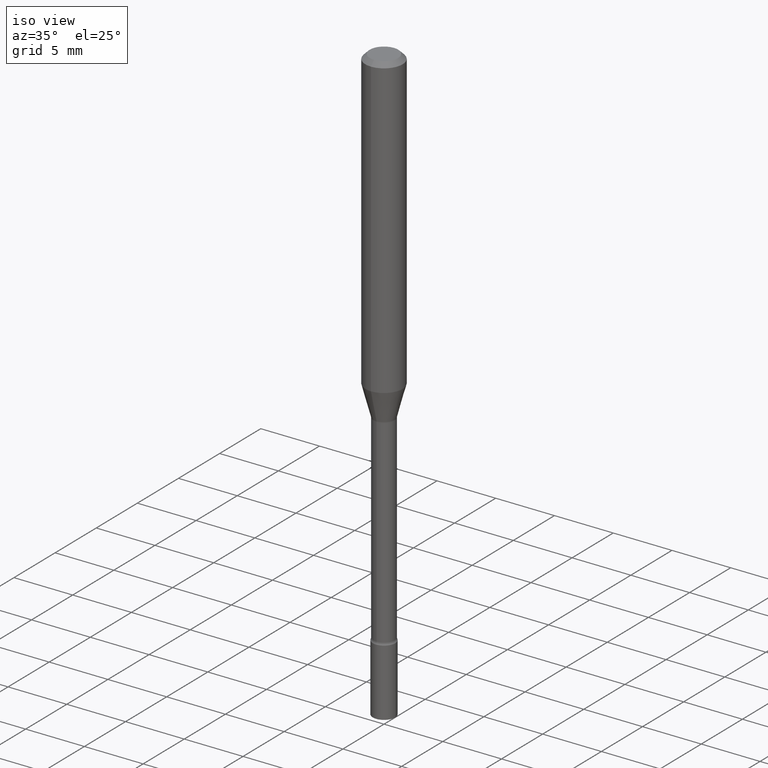
[diagram: clean part render]
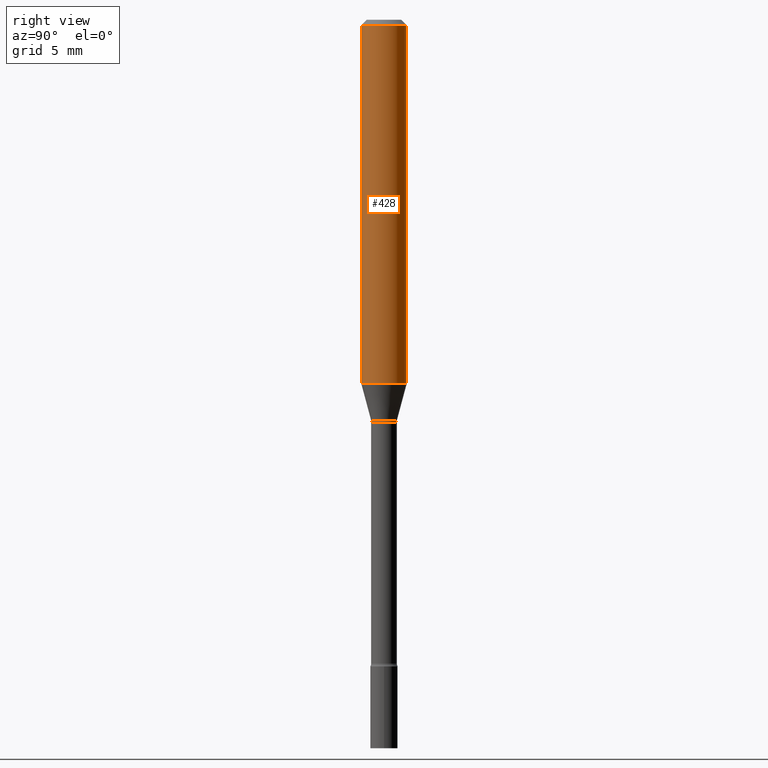
[diagram: tour spotlight — one face highlighted and labeled with its STEP entity id]
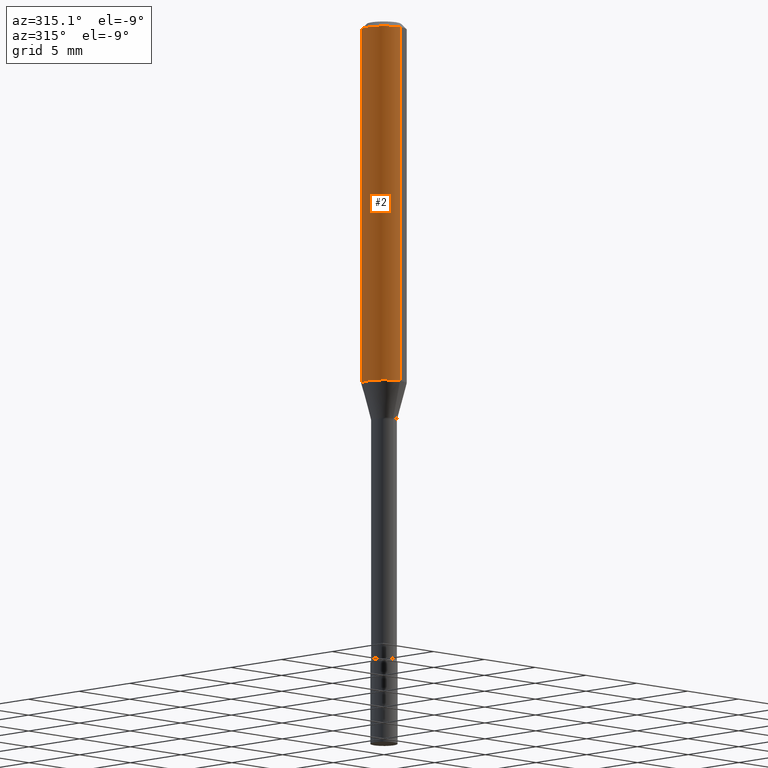
[diagram: tour spotlight — one face highlighted and labeled with its STEP entity id]
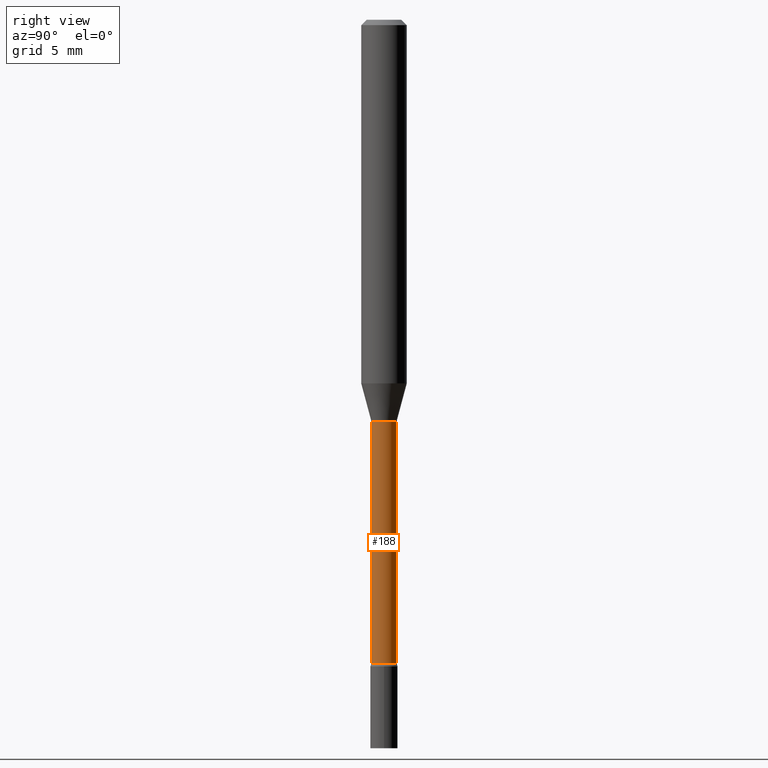
[diagram: tour spotlight — one face highlighted and labeled with its STEP entity id]
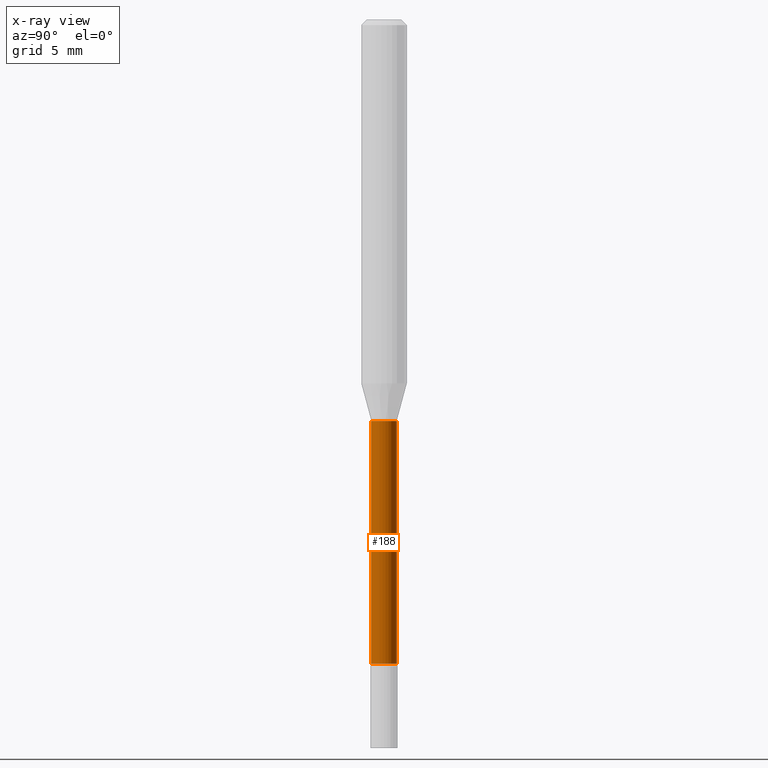
[diagram: x-ray of the same camera — body ghosted, this tour face saturated]
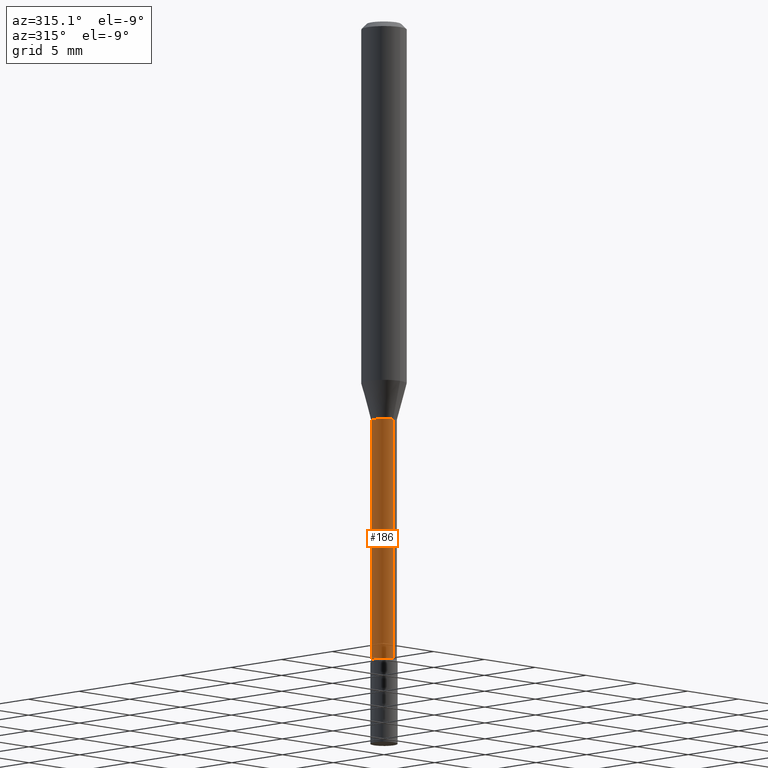
[diagram: tour spotlight — one face highlighted and labeled with its STEP entity id]
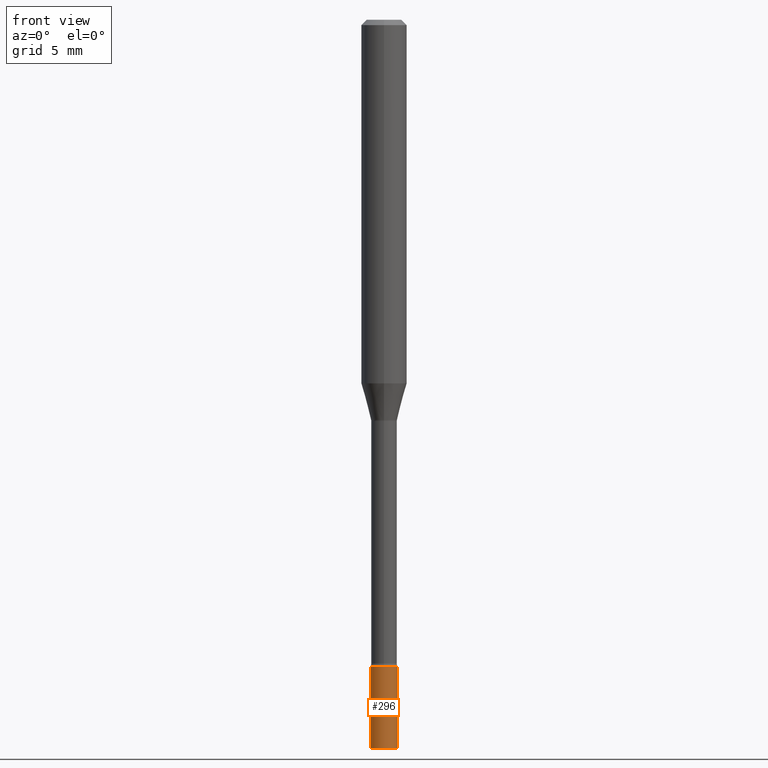
[diagram: tour spotlight — one face highlighted and labeled with its STEP entity id]
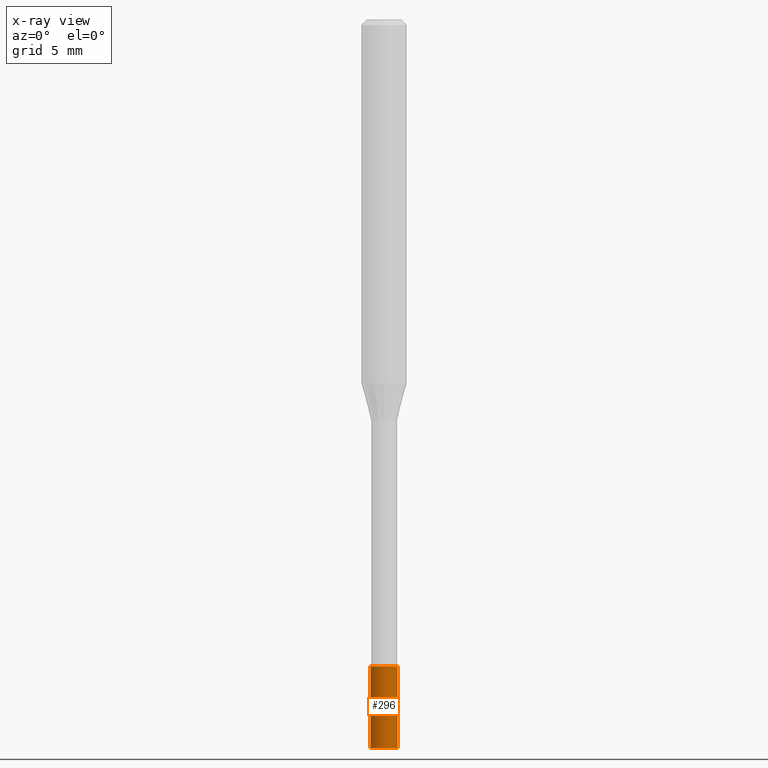
[diagram: x-ray of the same camera — body ghosted, this tour face saturated]
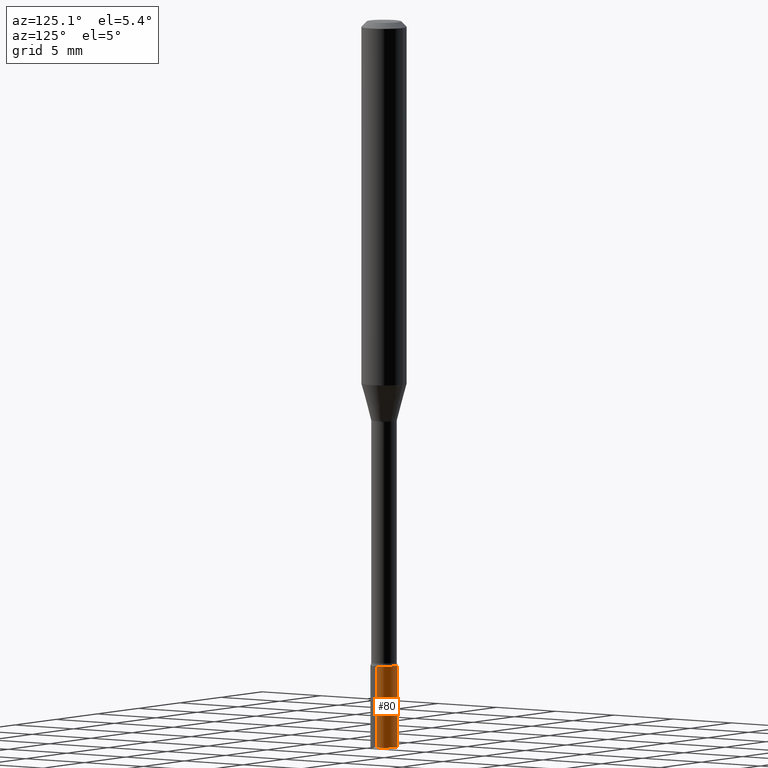
[diagram: tour spotlight — one face highlighted and labeled with its STEP entity id]
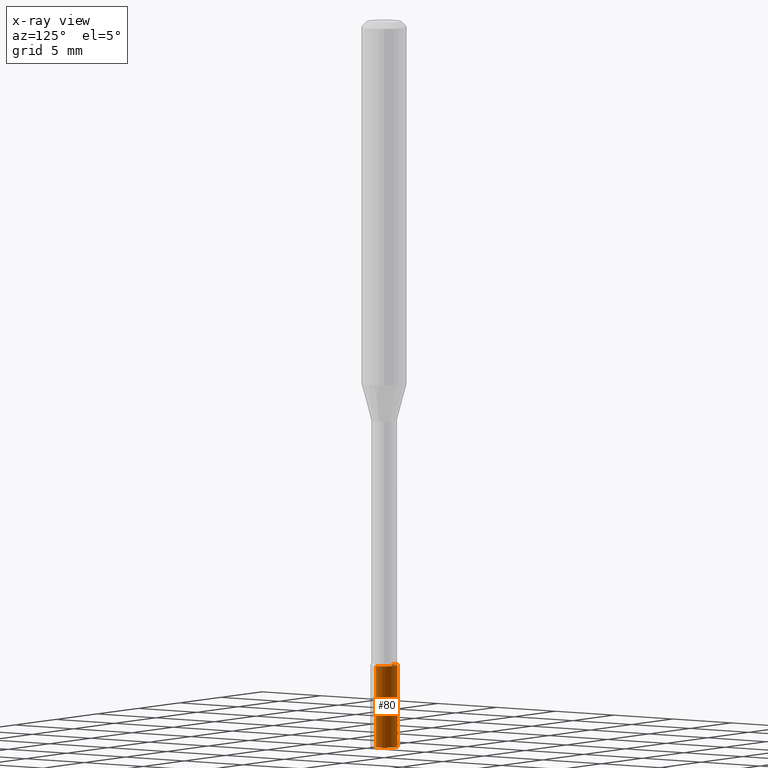
[diagram: x-ray of the same camera — body ghosted, this tour face saturated]
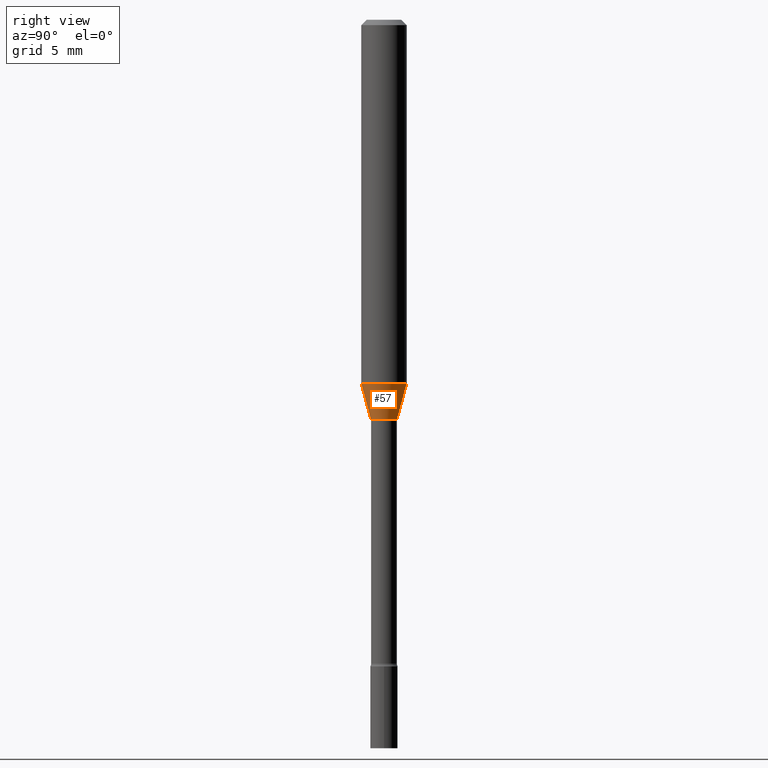
[diagram: tour spotlight — one face highlighted and labeled with its STEP entity id]
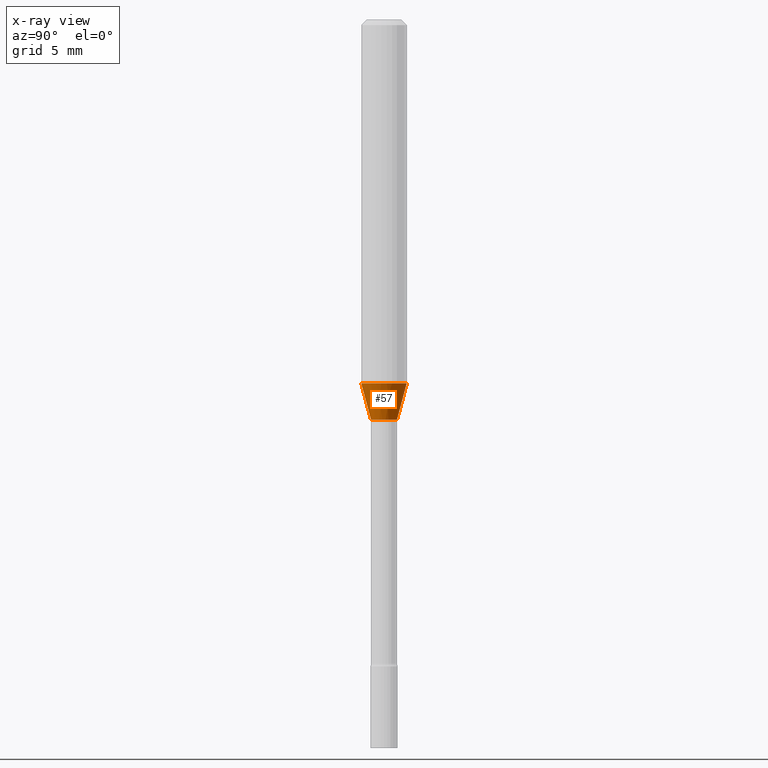
[diagram: x-ray of the same camera — body ghosted, this tour face saturated]
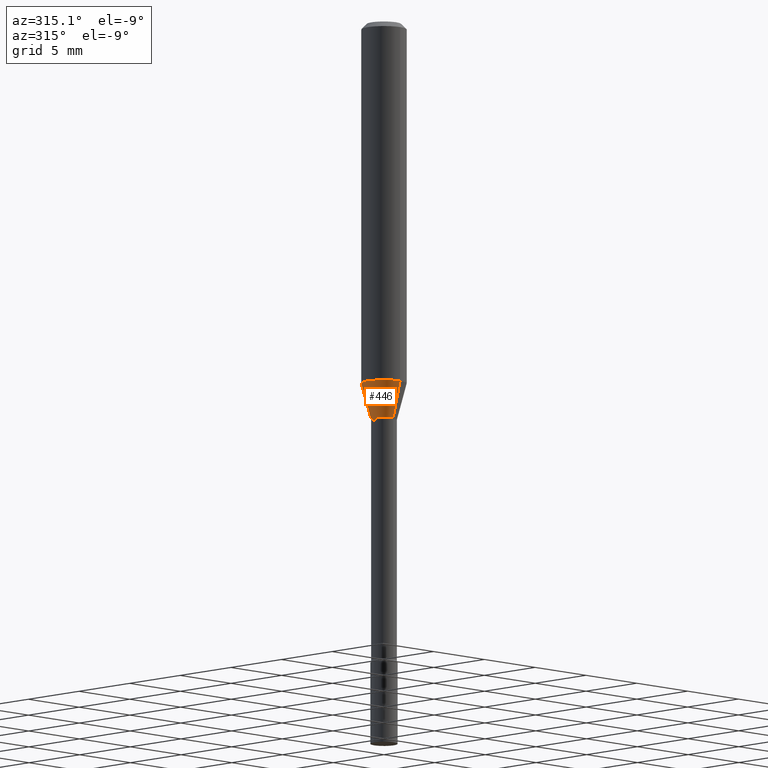
[diagram: tour spotlight — one face highlighted and labeled with its STEP entity id]
A machine part: a face-by-face anatomy tour. The part has 18 B-rep faces; the first image is the clean iso view, then the 8 largest visible faces are spotlighted one at a time (largest first), each with its STEP entity span.

Face 1 — right view, entity #428. In plain terms, the highlighted cylindrical surface (edge-blend (fillet) strip) has radius 1.5875 mm, axis along (-0, 0, 1).
Definition (entity closure, byte-faithful):
#21 = LINE ( 'NONE', #505, #238 ) ;
#55 = EDGE_CURVE ( 'NONE', #492, #335, #21, .T. ) ;
#66 = EDGE_CURVE ( 'NONE', #273, #151, #421, .T. ) ;
#69 = ORIENTED_EDGE ( 'NONE', *, *, #55, .T. ) ;
#73 = AXIS2_PLACEMENT_3D ( 'NONE', #387, #95, #502 ) ;
#76 = DIRECTION ( 'NONE',  ( -2.445481353659648780E-29, 3.491463370145485992E-15, 1.000000000000000000 ) ) ;
#78 = CYLINDRICAL_SURFACE ( 'NONE', #246, 0.06250000000000000000 ) ;
#90 = EDGE_CURVE ( 'NONE', #151, #335, #391, .T. ) ;
#95 = DIRECTION ( 'NONE',  ( -2.445481353659648780E-29, 3.491463370145485992E-15, 1.000000000000000000 ) ) ;
#117 = CARTESIAN_POINT ( 'NONE',  ( 4.440892098500871695E-16, 0.06249999999999995837, -0.01500000000000024751 ) ) ;
#121 = CARTESIAN_POINT ( 'NONE',  ( 0.000000000000000000, 0.000000000000000000, 0.000000000000000000 ) ) ;
#151 = VERTEX_POINT ( 'NONE', #423 ) ;
#157 = AXIS2_PLACEMENT_3D ( 'NONE', #227, #392, #317 ) ;
#169 = DIRECTION ( 'NONE',  ( -2.445481353659649060E-29, 3.491463370145485992E-15, 1.000000000000000000 ) ) ;
#184 = CIRCLE ( 'NONE', #157, 0.06250000000000000000 ) ;
#227 = CARTESIAN_POINT ( 'NONE',  ( 2.441327986018265977E-29, -3.485533522853485629E-15, -0.9983016154937482955 ) ) ;
#238 = VECTOR ( 'NONE', #350, 39.37007874015748143 ) ;
#242 = ORIENTED_EDGE ( 'NONE', *, *, #304, .T. ) ;
#246 = AXIS2_PLACEMENT_3D ( 'NONE', #121, #76, #408 ) ;
#273 = VERTEX_POINT ( 'NONE', #426 ) ;
#304 = EDGE_CURVE ( 'NONE', #273, #492, #184, .T. ) ;
#317 = DIRECTION ( 'NONE',  ( -6.982962677686265922E-15, -1.000000000000000000, 4.370956789862821150E-15 ) ) ;
#335 = VERTEX_POINT ( 'NONE', #117 ) ;
#350 = DIRECTION ( 'NONE',  ( -2.445481353659649060E-29, 3.491463370145485992E-15, 1.000000000000000000 ) ) ;
#353 = VECTOR ( 'NONE', #169, 39.37007874015748143 ) ;
#373 = ORIENTED_EDGE ( 'NONE', *, *, #90, .F. ) ;
#375 = EDGE_LOOP ( 'NONE', ( #242, #69, #373, #431 ) ) ;
#386 = CARTESIAN_POINT ( 'NONE',  ( -4.364351673553916201E-16, -0.06250000000000000000, 2.182164606340928745E-16 ) ) ;
#387 = CARTESIAN_POINT ( 'NONE',  ( 3.668222030489480229E-31, -5.237195055218239563E-17, -0.01500000000000003067 ) ) ;
#391 = CIRCLE ( 'NONE', #73, 0.06250000000000000000 ) ;
#392 = DIRECTION ( 'NONE',  ( -2.445481353659648780E-29, 3.491463370145485992E-15, 1.000000000000000000 ) ) ;
#408 = DIRECTION ( 'NONE',  ( -6.982962677686265922E-15, -1.000000000000000000, 3.491463370145485992E-15 ) ) ;
#421 = LINE ( 'NONE', #386, #353 ) ;
#423 = CARTESIAN_POINT ( 'NONE',  ( -4.364351673553912750E-16, -0.06250000000000005551, -0.01499999999999981209 ) ) ;
#426 = CARTESIAN_POINT ( 'NONE',  ( -4.364351673553671654E-16, -0.06250000000000346945, -0.9983016154937480735 ) ) ;
#428 = ADVANCED_FACE ( 'NONE', ( #442 ), #78, .T. ) ;
#431 = ORIENTED_EDGE ( 'NONE', *, *, #66, .F. ) ;
#442 = FACE_OUTER_BOUND ( 'NONE', #375, .T. ) ;
#445 = CARTESIAN_POINT ( 'NONE',  ( 4.440892098500869722E-16, 0.06249999999999652361, -0.9983016154937485176 ) ) ;
#492 = VERTEX_POINT ( 'NONE', #445 ) ;
#502 = DIRECTION ( 'NONE',  ( -6.982962677686265922E-15, -1.000000000000000000, 3.483106191921935554E-15 ) ) ;
#505 = CARTESIAN_POINT ( 'NONE',  ( 4.440892098500625669E-16, 0.06250000000000000000, -2.182164606340928745E-16 ) ) ;

Face 2 — auxiliary view, entity #2. In plain terms, the highlighted cylindrical surface (edge-blend (fillet) strip) has radius 1.5875 mm, axis along (-0, 0, 1).
Definition (entity closure, byte-faithful):
#2 = ADVANCED_FACE ( 'NONE', ( #122 ), #491, .T. ) ;
#6 = AXIS2_PLACEMENT_3D ( 'NONE', #339, #499, #294 ) ;
#21 = LINE ( 'NONE', #505, #238 ) ;
#55 = EDGE_CURVE ( 'NONE', #492, #335, #21, .T. ) ;
#66 = EDGE_CURVE ( 'NONE', #273, #151, #421, .T. ) ;
#72 = ORIENTED_EDGE ( 'NONE', *, *, #66, .T. ) ;
#85 = ORIENTED_EDGE ( 'NONE', *, *, #55, .F. ) ;
#113 = DIRECTION ( 'NONE',  ( -6.982962677686265922E-15, -1.000000000000000000, 3.491463370145485992E-15 ) ) ;
#116 = CARTESIAN_POINT ( 'NONE',  ( 0.000000000000000000, 0.000000000000000000, 0.000000000000000000 ) ) ;
#117 = CARTESIAN_POINT ( 'NONE',  ( 4.440892098500871695E-16, 0.06249999999999995837, -0.01500000000000024751 ) ) ;
#120 = ORIENTED_EDGE ( 'NONE', *, *, #382, .F. ) ;
#122 = FACE_OUTER_BOUND ( 'NONE', #401, .T. ) ;
#126 = AXIS2_PLACEMENT_3D ( 'NONE', #116, #412, #113 ) ;
#151 = VERTEX_POINT ( 'NONE', #423 ) ;
#169 = DIRECTION ( 'NONE',  ( -2.445481353659649060E-29, 3.491463370145485992E-15, 1.000000000000000000 ) ) ;
#197 = CARTESIAN_POINT ( 'NONE',  ( 3.668222030489480229E-31, -5.237195055218239563E-17, -0.01500000000000003067 ) ) ;
#206 = DIRECTION ( 'NONE',  ( -2.445481353659648780E-29, 3.491463370145485992E-15, 1.000000000000000000 ) ) ;
#238 = VECTOR ( 'NONE', #350, 39.37007874015748143 ) ;
#273 = VERTEX_POINT ( 'NONE', #426 ) ;
#283 = CIRCLE ( 'NONE', #6, 0.06250000000000000000 ) ;
#294 = DIRECTION ( 'NONE',  ( -6.982962677686265922E-15, -1.000000000000000000, 4.370956789862821150E-15 ) ) ;
#335 = VERTEX_POINT ( 'NONE', #117 ) ;
#339 = CARTESIAN_POINT ( 'NONE',  ( 2.441327986018265977E-29, -3.485533522853485629E-15, -0.9983016154937482955 ) ) ;
#350 = DIRECTION ( 'NONE',  ( -2.445481353659649060E-29, 3.491463370145485992E-15, 1.000000000000000000 ) ) ;
#353 = VECTOR ( 'NONE', #169, 39.37007874015748143 ) ;
#374 = DIRECTION ( 'NONE',  ( -6.982962677686265922E-15, -1.000000000000000000, 3.483106191921935554E-15 ) ) ;
#382 = EDGE_CURVE ( 'NONE', #335, #151, #420, .T. ) ;
#386 = CARTESIAN_POINT ( 'NONE',  ( -4.364351673553916201E-16, -0.06250000000000000000, 2.182164606340928745E-16 ) ) ;
#401 = EDGE_LOOP ( 'NONE', ( #85, #512, #72, #120 ) ) ;
#412 = DIRECTION ( 'NONE',  ( -2.445481353659648780E-29, 3.491463370145485992E-15, 1.000000000000000000 ) ) ;
#420 = CIRCLE ( 'NONE', #468, 0.06250000000000000000 ) ;
#421 = LINE ( 'NONE', #386, #353 ) ;
#423 = CARTESIAN_POINT ( 'NONE',  ( -4.364351673553912750E-16, -0.06250000000000005551, -0.01499999999999981209 ) ) ;
#426 = CARTESIAN_POINT ( 'NONE',  ( -4.364351673553671654E-16, -0.06250000000000346945, -0.9983016154937480735 ) ) ;
#445 = CARTESIAN_POINT ( 'NONE',  ( 4.440892098500869722E-16, 0.06249999999999652361, -0.9983016154937485176 ) ) ;
#447 = EDGE_CURVE ( 'NONE', #492, #273, #283, .T. ) ;
#468 = AXIS2_PLACEMENT_3D ( 'NONE', #197, #206, #374 ) ;
#491 = CYLINDRICAL_SURFACE ( 'NONE', #126, 0.06250000000000000000 ) ;
#492 = VERTEX_POINT ( 'NONE', #445 ) ;
#499 = DIRECTION ( 'NONE',  ( -2.445481353659648780E-29, 3.491463370145485992E-15, 1.000000000000000000 ) ) ;
#505 = CARTESIAN_POINT ( 'NONE',  ( 4.440892098500625669E-16, 0.06250000000000000000, -2.182164606340928745E-16 ) ) ;
#512 = ORIENTED_EDGE ( 'NONE', *, *, #447, .T. ) ;

Face 3 — right view, entity #188. An x-ray twin of the same camera follows (body ghosted, this face saturated) — the face is partly hidden behind the body. In plain terms, the highlighted cylindrical surface (edge-blend (fillet) strip) has radius 0.8954 mm, axis along (-0, 0, 1).
Definition (entity closure, byte-faithful):
#5 = VERTEX_POINT ( 'NONE', #46 ) ;
#10 = EDGE_LOOP ( 'NONE', ( #270, #281, #43, #511 ) ) ;
#14 = CARTESIAN_POINT ( 'NONE',  ( 2.504663143554787774E-16, 0.03524999999999615247, -1.101974787463811056 ) ) ;
#43 = ORIENTED_EDGE ( 'NONE', *, *, #272, .F. ) ;
#45 = AXIS2_PLACEMENT_3D ( 'NONE', #218, #395, #397 ) ;
#46 = CARTESIAN_POINT ( 'NONE',  ( -2.461494343884138594E-16, -0.03525000000000384076, -1.101974787463810834 ) ) ;
#59 = CYLINDRICAL_SURFACE ( 'NONE', #45, 0.03525000000000003825 ) ;
#62 = CARTESIAN_POINT ( 'NONE',  ( -2.461494343883982794E-16, -0.03525000000000625550, -1.767098259685360606 ) ) ;
#68 = LINE ( 'NONE', #365, #497 ) ;
#77 = VERTEX_POINT ( 'NONE', #14 ) ;
#86 = DIRECTION ( 'NONE',  ( -2.445481353659648780E-29, 3.491463370145485992E-15, 1.000000000000000000 ) ) ;
#107 = CARTESIAN_POINT ( 'NONE',  ( 2.694858794945804127E-29, -3.847504605253753145E-15, -1.101974787463810834 ) ) ;
#128 = DIRECTION ( 'NONE',  ( -6.982962677686266711E-15, -1.000000000000000000, 0.000000000000000000 ) ) ;
#146 = CIRCLE ( 'NONE', #173, 0.03525000000000008682 ) ;
#154 = CIRCLE ( 'NONE', #378, 0.03524999999999999661 ) ;
#158 = VERTEX_POINT ( 'NONE', #62 ) ;
#165 = CARTESIAN_POINT ( 'NONE',  ( 2.584599201327800595E-16, 0.03524999999999392508, -1.767098259685360606 ) ) ;
#171 = EDGE_CURVE ( 'NONE', #158, #403, #146, .T. ) ;
#173 = AXIS2_PLACEMENT_3D ( 'NONE', #379, #86, #128 ) ;
#181 = DIRECTION ( 'NONE',  ( -2.445481353659648780E-29, 3.491463370145485992E-15, 1.000000000000000000 ) ) ;
#188 = ADVANCED_FACE ( 'NONE', ( #418 ), #59, .T. ) ;
#218 = CARTESIAN_POINT ( 'NONE',  ( 0.000000000000000000, 0.000000000000000000, 0.000000000000000000 ) ) ;
#244 = LINE ( 'NONE', #328, #276 ) ;
#257 = EDGE_CURVE ( 'NONE', #403, #77, #68, .T. ) ;
#270 = ORIENTED_EDGE ( 'NONE', *, *, #171, .T. ) ;
#272 = EDGE_CURVE ( 'NONE', #5, #77, #154, .T. ) ;
#276 = VECTOR ( 'NONE', #451, 39.37007874015748143 ) ;
#281 = ORIENTED_EDGE ( 'NONE', *, *, #257, .T. ) ;
#311 = DIRECTION ( 'NONE',  ( -2.445481353659649060E-29, 3.491463370145485992E-15, 1.000000000000000000 ) ) ;
#328 = CARTESIAN_POINT ( 'NONE',  ( -2.461494343884411737E-16, -0.03525000000000003825, 1.230740837976285376E-16 ) ) ;
#365 = CARTESIAN_POINT ( 'NONE',  ( 2.504663143554355873E-16, 0.03525000000000003825, -1.230740837976285376E-16 ) ) ;
#378 = AXIS2_PLACEMENT_3D ( 'NONE', #107, #181, #519 ) ;
#379 = CARTESIAN_POINT ( 'NONE',  ( 4.321405844144966005E-29, -6.169758845139272313E-15, -1.767098259685360606 ) ) ;
#395 = DIRECTION ( 'NONE',  ( -2.445481353659648780E-29, 3.491463370145485992E-15, 1.000000000000000000 ) ) ;
#397 = DIRECTION ( 'NONE',  ( -6.982962677686266711E-15, -1.000000000000000000, 3.491463370145486781E-15 ) ) ;
#403 = VERTEX_POINT ( 'NONE', #165 ) ;
#418 = FACE_OUTER_BOUND ( 'NONE', #10, .T. ) ;
#432 = EDGE_CURVE ( 'NONE', #158, #5, #244, .T. ) ;
#451 = DIRECTION ( 'NONE',  ( -2.445481353659649060E-29, 3.491463370145485992E-15, 1.000000000000000000 ) ) ;
#497 = VECTOR ( 'NONE', #311, 39.37007874015748143 ) ;
#511 = ORIENTED_EDGE ( 'NONE', *, *, #432, .F. ) ;
#519 = DIRECTION ( 'NONE',  ( -6.982962677686265133E-15, -1.000000000000000000, 3.874961693140799059E-15 ) ) ;

Face 4 — auxiliary view, entity #186. In plain terms, the highlighted cylindrical surface (edge-blend (fillet) strip) has radius 0.8954 mm, axis along (-0, 0, 1).
Definition (entity closure, byte-faithful):
#5 = VERTEX_POINT ( 'NONE', #46 ) ;
#14 = CARTESIAN_POINT ( 'NONE',  ( 2.504663143554787774E-16, 0.03524999999999615247, -1.101974787463811056 ) ) ;
#15 = CYLINDRICAL_SURFACE ( 'NONE', #182, 0.03525000000000003825 ) ;
#37 = DIRECTION ( 'NONE',  ( -6.982962677686266711E-15, -1.000000000000000000, 0.000000000000000000 ) ) ;
#40 = ORIENTED_EDGE ( 'NONE', *, *, #222, .F. ) ;
#46 = CARTESIAN_POINT ( 'NONE',  ( -2.461494343884138594E-16, -0.03525000000000384076, -1.101974787463810834 ) ) ;
#62 = CARTESIAN_POINT ( 'NONE',  ( -2.461494343883982794E-16, -0.03525000000000625550, -1.767098259685360606 ) ) ;
#68 = LINE ( 'NONE', #365, #497 ) ;
#77 = VERTEX_POINT ( 'NONE', #14 ) ;
#96 = CARTESIAN_POINT ( 'NONE',  ( 4.321405844144966005E-29, -6.169758845139272313E-15, -1.767098259685360606 ) ) ;
#102 = AXIS2_PLACEMENT_3D ( 'NONE', #96, #234, #37 ) ;
#125 = CARTESIAN_POINT ( 'NONE',  ( 0.000000000000000000, 0.000000000000000000, 0.000000000000000000 ) ) ;
#145 = ORIENTED_EDGE ( 'NONE', *, *, #257, .F. ) ;
#158 = VERTEX_POINT ( 'NONE', #62 ) ;
#165 = CARTESIAN_POINT ( 'NONE',  ( 2.584599201327800595E-16, 0.03524999999999392508, -1.767098259685360606 ) ) ;
#182 = AXIS2_PLACEMENT_3D ( 'NONE', #125, #301, #461 ) ;
#186 = ADVANCED_FACE ( 'NONE', ( #381 ), #15, .T. ) ;
#207 = EDGE_CURVE ( 'NONE', #403, #158, #344, .T. ) ;
#208 = ORIENTED_EDGE ( 'NONE', *, *, #432, .T. ) ;
#219 = AXIS2_PLACEMENT_3D ( 'NONE', #323, #515, #399 ) ;
#222 = EDGE_CURVE ( 'NONE', #77, #5, #448, .T. ) ;
#234 = DIRECTION ( 'NONE',  ( -2.445481353659648780E-29, 3.491463370145485992E-15, 1.000000000000000000 ) ) ;
#244 = LINE ( 'NONE', #328, #276 ) ;
#257 = EDGE_CURVE ( 'NONE', #403, #77, #68, .T. ) ;
#276 = VECTOR ( 'NONE', #451, 39.37007874015748143 ) ;
#301 = DIRECTION ( 'NONE',  ( -2.445481353659648780E-29, 3.491463370145485992E-15, 1.000000000000000000 ) ) ;
#311 = DIRECTION ( 'NONE',  ( -2.445481353659649060E-29, 3.491463370145485992E-15, 1.000000000000000000 ) ) ;
#323 = CARTESIAN_POINT ( 'NONE',  ( 2.694858794945804127E-29, -3.847504605253753145E-15, -1.101974787463810834 ) ) ;
#324 = EDGE_LOOP ( 'NONE', ( #145, #366, #208, #40 ) ) ;
#328 = CARTESIAN_POINT ( 'NONE',  ( -2.461494343884411737E-16, -0.03525000000000003825, 1.230740837976285376E-16 ) ) ;
#344 = CIRCLE ( 'NONE', #102, 0.03525000000000008682 ) ;
#365 = CARTESIAN_POINT ( 'NONE',  ( 2.504663143554355873E-16, 0.03525000000000003825, -1.230740837976285376E-16 ) ) ;
#366 = ORIENTED_EDGE ( 'NONE', *, *, #207, .T. ) ;
#381 = FACE_OUTER_BOUND ( 'NONE', #324, .T. ) ;
#399 = DIRECTION ( 'NONE',  ( -6.982962677686265133E-15, -1.000000000000000000, 3.874961693140799059E-15 ) ) ;
#403 = VERTEX_POINT ( 'NONE', #165 ) ;
#432 = EDGE_CURVE ( 'NONE', #158, #5, #244, .T. ) ;
#448 = CIRCLE ( 'NONE', #219, 0.03524999999999999661 ) ;
#451 = DIRECTION ( 'NONE',  ( -2.445481353659649060E-29, 3.491463370145485992E-15, 1.000000000000000000 ) ) ;
#461 = DIRECTION ( 'NONE',  ( -6.982962677686266711E-15, -1.000000000000000000, 3.491463370145486781E-15 ) ) ;
#497 = VECTOR ( 'NONE', #311, 39.37007874015748143 ) ;
#515 = DIRECTION ( 'NONE',  ( -2.445481353659648780E-29, 3.491463370145485992E-15, 1.000000000000000000 ) ) ;

Face 5 — front view, entity #296. An x-ray twin of the same camera follows (body ghosted, this face saturated) — the face is partly hidden behind the body. In plain terms, the highlighted cylindrical surface (edge-blend (fillet) strip) has radius 0.9525 mm, axis along (-0, 0, 1).
Definition (entity closure, byte-faithful):
#8 = ORIENTED_EDGE ( 'NONE', *, *, #205, .F. ) ;
#42 = VERTEX_POINT ( 'NONE', #204 ) ;
#79 = ORIENTED_EDGE ( 'NONE', *, *, #475, .F. ) ;
#81 = CARTESIAN_POINT ( 'NONE',  ( 0.03749999999999999861, -2.618611004132350016E-16, 1.828566290923475922E-30 ) ) ;
#88 = AXIS2_PLACEMENT_3D ( 'NONE', #389, #480, #106 ) ;
#103 = DIRECTION ( 'NONE',  ( -2.445468806185136597E-29, 3.491481338843145583E-15, 1.000000000000000000 ) ) ;
#106 = DIRECTION ( 'NONE',  ( 1.000000000000000000, -6.982962677686268288E-15, 0.000000000000000000 ) ) ;
#150 = CARTESIAN_POINT ( 'NONE',  ( -0.03749999999999999861, -6.323717501156401251E-15, -1.775000000000000133 ) ) ;
#159 = CARTESIAN_POINT ( 'NONE',  ( -0.03749999999999999861, 2.664535259100375598E-16, -1.844600658845589458E-30 ) ) ;
#190 = DIRECTION ( 'NONE',  ( 1.000000000000000000, -6.982962677686266711E-15, 4.876176775795935793E-29 ) ) ;
#191 = EDGE_CURVE ( 'NONE', #318, #42, #194, .T. ) ;
#194 = CIRCLE ( 'NONE', #251, 0.03749999999999999861 ) ;
#204 = CARTESIAN_POINT ( 'NONE',  ( 0.03749999999999999861, -7.244823778099525378E-15, -2.000000000000000000 ) ) ;
#205 = EDGE_CURVE ( 'NONE', #455, #443, #291, .T. ) ;
#212 = EDGE_LOOP ( 'NONE', ( #79, #358, #472, #8 ) ) ;
#231 = VECTOR ( 'NONE', #496, 39.37007874015748143 ) ;
#251 = AXIS2_PLACEMENT_3D ( 'NONE', #476, #320, #279 ) ;
#279 = DIRECTION ( 'NONE',  ( 1.000000000000000000, -6.982962677686268288E-15, 0.000000000000000000 ) ) ;
#291 = CIRCLE ( 'NONE', #88, 0.03749999999999999861 ) ;
#296 = ADVANCED_FACE ( 'NONE', ( #352 ), #471, .T. ) ;
#300 = VECTOR ( 'NONE', #493, 39.37007874015748143 ) ;
#318 = VERTEX_POINT ( 'NONE', #433 ) ;
#320 = DIRECTION ( 'NONE',  ( -2.445468806185136597E-29, 3.491481338843145583E-15, 1.000000000000000000 ) ) ;
#334 = LINE ( 'NONE', #81, #231 ) ;
#352 = FACE_OUTER_BOUND ( 'NONE', #212, .T. ) ;
#358 = ORIENTED_EDGE ( 'NONE', *, *, #191, .T. ) ;
#363 = EDGE_CURVE ( 'NONE', #42, #443, #334, .T. ) ;
#364 = AXIS2_PLACEMENT_3D ( 'NONE', #510, #103, #190 ) ;
#372 = CARTESIAN_POINT ( 'NONE',  ( 0.03749999999999999861, -6.459240476859818795E-15, -1.775000000000000133 ) ) ;
#389 = CARTESIAN_POINT ( 'NONE',  ( 4.340707130978617347E-29, -6.197379376446583794E-15, -1.775000000000000133 ) ) ;
#402 = LINE ( 'NONE', #159, #300 ) ;
#433 = CARTESIAN_POINT ( 'NONE',  ( -0.03749999999999999861, -6.323717501156401251E-15, -2.000000000000000000 ) ) ;
#443 = VERTEX_POINT ( 'NONE', #372 ) ;
#455 = VERTEX_POINT ( 'NONE', #150 ) ;
#471 = CYLINDRICAL_SURFACE ( 'NONE', #364, 0.03749999999999999861 ) ;
#472 = ORIENTED_EDGE ( 'NONE', *, *, #363, .T. ) ;
#475 = EDGE_CURVE ( 'NONE', #318, #455, #402, .T. ) ;
#476 = CARTESIAN_POINT ( 'NONE',  ( 4.890937612370273194E-29, -6.982962677686291165E-15, -2.000000000000000000 ) ) ;
#480 = DIRECTION ( 'NONE',  ( -2.445468806185136597E-29, 3.491481338843145583E-15, 1.000000000000000000 ) ) ;
#493 = DIRECTION ( 'NONE',  ( -2.445468806185136877E-29, 3.491481338843145188E-15, 1.000000000000000000 ) ) ;
#496 = DIRECTION ( 'NONE',  ( -2.445468806185136877E-29, 3.491481338843145188E-15, 1.000000000000000000 ) ) ;
#510 = CARTESIAN_POINT ( 'NONE',  ( 0.000000000000000000, 0.000000000000000000, 0.000000000000000000 ) ) ;

Face 6 — auxiliary view, entity #80. An x-ray twin of the same camera follows (body ghosted, this face saturated) — the face is partly hidden behind the body. In plain terms, the highlighted cylindrical surface (edge-blend (fillet) strip) has radius 0.9525 mm, axis along (-0, 0, 1).
Definition (entity closure, byte-faithful):
#1 = CARTESIAN_POINT ( 'NONE',  ( 4.890937612370273194E-29, -6.982962677686291165E-15, -2.000000000000000000 ) ) ;
#9 = CARTESIAN_POINT ( 'NONE',  ( 4.340707130978617347E-29, -6.197379376446583794E-15, -1.775000000000000133 ) ) ;
#42 = VERTEX_POINT ( 'NONE', #204 ) ;
#80 = ADVANCED_FACE ( 'NONE', ( #134 ), #307, .T. ) ;
#81 = CARTESIAN_POINT ( 'NONE',  ( 0.03749999999999999861, -2.618611004132350016E-16, 1.828566290923475922E-30 ) ) ;
#84 = ORIENTED_EDGE ( 'NONE', *, *, #267, .T. ) ;
#87 = AXIS2_PLACEMENT_3D ( 'NONE', #469, #252, #123 ) ;
#111 = CIRCLE ( 'NONE', #503, 0.03749999999999999861 ) ;
#123 = DIRECTION ( 'NONE',  ( 1.000000000000000000, -6.982962677686266711E-15, 4.876176775795935793E-29 ) ) ;
#134 = FACE_OUTER_BOUND ( 'NONE', #275, .T. ) ;
#149 = DIRECTION ( 'NONE',  ( -2.445468806185136597E-29, 3.491481338843145583E-15, 1.000000000000000000 ) ) ;
#150 = CARTESIAN_POINT ( 'NONE',  ( -0.03749999999999999861, -6.323717501156401251E-15, -1.775000000000000133 ) ) ;
#159 = CARTESIAN_POINT ( 'NONE',  ( -0.03749999999999999861, 2.664535259100375598E-16, -1.844600658845589458E-30 ) ) ;
#162 = DIRECTION ( 'NONE',  ( 1.000000000000000000, -6.982962677686268288E-15, 0.000000000000000000 ) ) ;
#204 = CARTESIAN_POINT ( 'NONE',  ( 0.03749999999999999861, -7.244823778099525378E-15, -2.000000000000000000 ) ) ;
#231 = VECTOR ( 'NONE', #496, 39.37007874015748143 ) ;
#240 = ORIENTED_EDGE ( 'NONE', *, *, #337, .F. ) ;
#252 = DIRECTION ( 'NONE',  ( -2.445468806185136597E-29, 3.491481338843145583E-15, 1.000000000000000000 ) ) ;
#267 = EDGE_CURVE ( 'NONE', #42, #318, #459, .T. ) ;
#275 = EDGE_LOOP ( 'NONE', ( #84, #517, #240, #438 ) ) ;
#300 = VECTOR ( 'NONE', #493, 39.37007874015748143 ) ;
#307 = CYLINDRICAL_SURFACE ( 'NONE', #87, 0.03749999999999999861 ) ;
#318 = VERTEX_POINT ( 'NONE', #433 ) ;
#334 = LINE ( 'NONE', #81, #231 ) ;
#337 = EDGE_CURVE ( 'NONE', #443, #455, #111, .T. ) ;
#363 = EDGE_CURVE ( 'NONE', #42, #443, #334, .T. ) ;
#372 = CARTESIAN_POINT ( 'NONE',  ( 0.03749999999999999861, -6.459240476859818795E-15, -1.775000000000000133 ) ) ;
#402 = LINE ( 'NONE', #159, #300 ) ;
#433 = CARTESIAN_POINT ( 'NONE',  ( -0.03749999999999999861, -6.323717501156401251E-15, -2.000000000000000000 ) ) ;
#438 = ORIENTED_EDGE ( 'NONE', *, *, #363, .F. ) ;
#443 = VERTEX_POINT ( 'NONE', #372 ) ;
#455 = VERTEX_POINT ( 'NONE', #150 ) ;
#459 = CIRCLE ( 'NONE', #478, 0.03749999999999999861 ) ;
#469 = CARTESIAN_POINT ( 'NONE',  ( 0.000000000000000000, 0.000000000000000000, 0.000000000000000000 ) ) ;
#475 = EDGE_CURVE ( 'NONE', #318, #455, #402, .T. ) ;
#478 = AXIS2_PLACEMENT_3D ( 'NONE', #1, #149, #482 ) ;
#482 = DIRECTION ( 'NONE',  ( 1.000000000000000000, -6.982962677686268288E-15, 0.000000000000000000 ) ) ;
#490 = DIRECTION ( 'NONE',  ( -2.445468806185136597E-29, 3.491481338843145583E-15, 1.000000000000000000 ) ) ;
#493 = DIRECTION ( 'NONE',  ( -2.445468806185136877E-29, 3.491481338843145188E-15, 1.000000000000000000 ) ) ;
#496 = DIRECTION ( 'NONE',  ( -2.445468806185136877E-29, 3.491481338843145188E-15, 1.000000000000000000 ) ) ;
#503 = AXIS2_PLACEMENT_3D ( 'NONE', #9, #490, #162 ) ;
#517 = ORIENTED_EDGE ( 'NONE', *, *, #475, .T. ) ;

Face 7 — right view, entity #57. An x-ray twin of the same camera follows (body ghosted, this face saturated) — the face is partly hidden behind the body. In plain terms, the highlighted conical surface has half-angle 15 deg.
Definition (entity closure, byte-faithful):
#4 = LINE ( 'NONE', #11, #28 ) ;
#11 = CARTESIAN_POINT ( 'NONE',  ( 2.540979878465616281E-16, 0.03576111260566013778, -1.098092501787273356 ) ) ;
#12 = CONICAL_SURFACE ( 'NONE', #336, 0.03576111260566397498, 0.2617993877991499629 ) ;
#19 = AXIS2_PLACEMENT_3D ( 'NONE', #74, #209, #239 ) ;
#24 = DIRECTION ( 'NONE',  ( -6.982962677686265133E-15, -1.000000000000000000, 3.819579138641765120E-15 ) ) ;
#28 = VECTOR ( 'NONE', #203, 39.37007874015748854 ) ;
#29 = CARTESIAN_POINT ( 'NONE',  ( -2.497185146378605472E-16, -0.03576111260566780525, -1.098092501787272912 ) ) ;
#30 = EDGE_LOOP ( 'NONE', ( #340, #452, #332, #200 ) ) ;
#44 = CARTESIAN_POINT ( 'NONE',  ( 3.490935988483243741E-16, 0.03576111260566013778, -1.098092501787273356 ) ) ;
#57 = ADVANCED_FACE ( 'NONE', ( #176 ), #12, .T. ) ;
#74 = CARTESIAN_POINT ( 'NONE',  ( 2.685364737714250814E-29, -3.833949747021680851E-15, -1.098092501787273134 ) ) ;
#83 = CARTESIAN_POINT ( 'NONE',  ( -2.497185146378605472E-16, -0.03576111260566780525, -1.098092501787272912 ) ) ;
#110 = DIRECTION ( 'NONE',  ( -1.807323732225328167E-15, -0.2588190451025179084, 0.9659258262890690894 ) ) ;
#157 = AXIS2_PLACEMENT_3D ( 'NONE', #227, #392, #317 ) ;
#176 = FACE_OUTER_BOUND ( 'NONE', #30, .T. ) ;
#184 = CIRCLE ( 'NONE', #157, 0.06250000000000000000 ) ;
#195 = CIRCLE ( 'NONE', #19, 0.03576111260566397498 ) ;
#200 = ORIENTED_EDGE ( 'NONE', *, *, #444, .F. ) ;
#203 = DIRECTION ( 'NONE',  ( 1.839019923739597949E-15, 0.2588190451025246253, 0.9659258262890670910 ) ) ;
#209 = DIRECTION ( 'NONE',  ( -2.445481353659648780E-29, 3.491463370145485992E-15, 1.000000000000000000 ) ) ;
#227 = CARTESIAN_POINT ( 'NONE',  ( 2.441327986018265977E-29, -3.485533522853485629E-15, -0.9983016154937482955 ) ) ;
#239 = DIRECTION ( 'NONE',  ( -6.982962677686265133E-15, -1.000000000000000000, 3.819579138641765120E-15 ) ) ;
#255 = CARTESIAN_POINT ( 'NONE',  ( 2.685364737714250814E-29, -3.833949747021680851E-15, -1.098092501787273134 ) ) ;
#273 = VERTEX_POINT ( 'NONE', #426 ) ;
#304 = EDGE_CURVE ( 'NONE', #273, #492, #184, .T. ) ;
#312 = VERTEX_POINT ( 'NONE', #29 ) ;
#317 = DIRECTION ( 'NONE',  ( -6.982962677686265922E-15, -1.000000000000000000, 4.370956789862821150E-15 ) ) ;
#332 = ORIENTED_EDGE ( 'NONE', *, *, #304, .F. ) ;
#336 = AXIS2_PLACEMENT_3D ( 'NONE', #255, #466, #24 ) ;
#340 = ORIENTED_EDGE ( 'NONE', *, *, #454, .T. ) ;
#347 = EDGE_CURVE ( 'NONE', #481, #492, #4, .T. ) ;
#367 = LINE ( 'NONE', #83, #439 ) ;
#392 = DIRECTION ( 'NONE',  ( -2.445481353659648780E-29, 3.491463370145485992E-15, 1.000000000000000000 ) ) ;
#426 = CARTESIAN_POINT ( 'NONE',  ( -4.364351673553671654E-16, -0.06250000000000346945, -0.9983016154937480735 ) ) ;
#439 = VECTOR ( 'NONE', #110, 39.37007874015748143 ) ;
#444 = EDGE_CURVE ( 'NONE', #312, #273, #367, .T. ) ;
#445 = CARTESIAN_POINT ( 'NONE',  ( 4.440892098500869722E-16, 0.06249999999999652361, -0.9983016154937485176 ) ) ;
#452 = ORIENTED_EDGE ( 'NONE', *, *, #347, .T. ) ;
#454 = EDGE_CURVE ( 'NONE', #312, #481, #195, .T. ) ;
#466 = DIRECTION ( 'NONE',  ( -2.445481353659648780E-29, 3.491463370145485992E-15, 1.000000000000000000 ) ) ;
#481 = VERTEX_POINT ( 'NONE', #44 ) ;
#492 = VERTEX_POINT ( 'NONE', #445 ) ;

Face 8 — auxiliary view, entity #446. In plain terms, the highlighted conical surface has half-angle 15 deg.
Definition (entity closure, byte-faithful):
#3 = FACE_OUTER_BOUND ( 'NONE', #233, .T. ) ;
#4 = LINE ( 'NONE', #11, #28 ) ;
#6 = AXIS2_PLACEMENT_3D ( 'NONE', #339, #499, #294 ) ;
#11 = CARTESIAN_POINT ( 'NONE',  ( 2.540979878465616281E-16, 0.03576111260566013778, -1.098092501787273356 ) ) ;
#28 = VECTOR ( 'NONE', #203, 39.37007874015748854 ) ;
#29 = CARTESIAN_POINT ( 'NONE',  ( -2.497185146378605472E-16, -0.03576111260566780525, -1.098092501787272912 ) ) ;
#44 = CARTESIAN_POINT ( 'NONE',  ( 3.490935988483243741E-16, 0.03576111260566013778, -1.098092501787273356 ) ) ;
#48 = CARTESIAN_POINT ( 'NONE',  ( 2.685364737714250814E-29, -3.833949747021680851E-15, -1.098092501787273134 ) ) ;
#75 = ORIENTED_EDGE ( 'NONE', *, *, #347, .F. ) ;
#83 = CARTESIAN_POINT ( 'NONE',  ( -2.497185146378605472E-16, -0.03576111260566780525, -1.098092501787272912 ) ) ;
#92 = DIRECTION ( 'NONE',  ( -6.982962677686265133E-15, -1.000000000000000000, 3.819579138641765120E-15 ) ) ;
#97 = EDGE_CURVE ( 'NONE', #481, #312, #413, .T. ) ;
#101 = ORIENTED_EDGE ( 'NONE', *, *, #447, .F. ) ;
#110 = DIRECTION ( 'NONE',  ( -1.807323732225328167E-15, -0.2588190451025179084, 0.9659258262890690894 ) ) ;
#112 = DIRECTION ( 'NONE',  ( -6.982962677686265133E-15, -1.000000000000000000, 3.819579138641765120E-15 ) ) ;
#160 = ORIENTED_EDGE ( 'NONE', *, *, #97, .T. ) ;
#203 = DIRECTION ( 'NONE',  ( 1.839019923739597949E-15, 0.2588190451025246253, 0.9659258262890670910 ) ) ;
#213 = CONICAL_SURFACE ( 'NONE', #345, 0.03576111260566397498, 0.2617993877991499629 ) ;
#214 = DIRECTION ( 'NONE',  ( -2.445481353659648780E-29, 3.491463370145485992E-15, 1.000000000000000000 ) ) ;
#233 = EDGE_LOOP ( 'NONE', ( #75, #160, #436, #101 ) ) ;
#241 = DIRECTION ( 'NONE',  ( -2.445481353659648780E-29, 3.491463370145485992E-15, 1.000000000000000000 ) ) ;
#266 = CARTESIAN_POINT ( 'NONE',  ( 2.685364737714250814E-29, -3.833949747021680851E-15, -1.098092501787273134 ) ) ;
#273 = VERTEX_POINT ( 'NONE', #426 ) ;
#283 = CIRCLE ( 'NONE', #6, 0.06250000000000000000 ) ;
#294 = DIRECTION ( 'NONE',  ( -6.982962677686265922E-15, -1.000000000000000000, 4.370956789862821150E-15 ) ) ;
#312 = VERTEX_POINT ( 'NONE', #29 ) ;
#339 = CARTESIAN_POINT ( 'NONE',  ( 2.441327986018265977E-29, -3.485533522853485629E-15, -0.9983016154937482955 ) ) ;
#345 = AXIS2_PLACEMENT_3D ( 'NONE', #48, #241, #112 ) ;
#347 = EDGE_CURVE ( 'NONE', #481, #492, #4, .T. ) ;
#367 = LINE ( 'NONE', #83, #439 ) ;
#413 = CIRCLE ( 'NONE', #429, 0.03576111260566397498 ) ;
#426 = CARTESIAN_POINT ( 'NONE',  ( -4.364351673553671654E-16, -0.06250000000000346945, -0.9983016154937480735 ) ) ;
#429 = AXIS2_PLACEMENT_3D ( 'NONE', #266, #214, #92 ) ;
#436 = ORIENTED_EDGE ( 'NONE', *, *, #444, .T. ) ;
#439 = VECTOR ( 'NONE', #110, 39.37007874015748143 ) ;
#444 = EDGE_CURVE ( 'NONE', #312, #273, #367, .T. ) ;
#445 = CARTESIAN_POINT ( 'NONE',  ( 4.440892098500869722E-16, 0.06249999999999652361, -0.9983016154937485176 ) ) ;
#446 = ADVANCED_FACE ( 'NONE', ( #3 ), #213, .T. ) ;
#447 = EDGE_CURVE ( 'NONE', #492, #273, #283, .T. ) ;
#481 = VERTEX_POINT ( 'NONE', #44 ) ;
#492 = VERTEX_POINT ( 'NONE', #445 ) ;
#499 = DIRECTION ( 'NONE',  ( -2.445481353659648780E-29, 3.491463370145485992E-15, 1.000000000000000000 ) ) ;